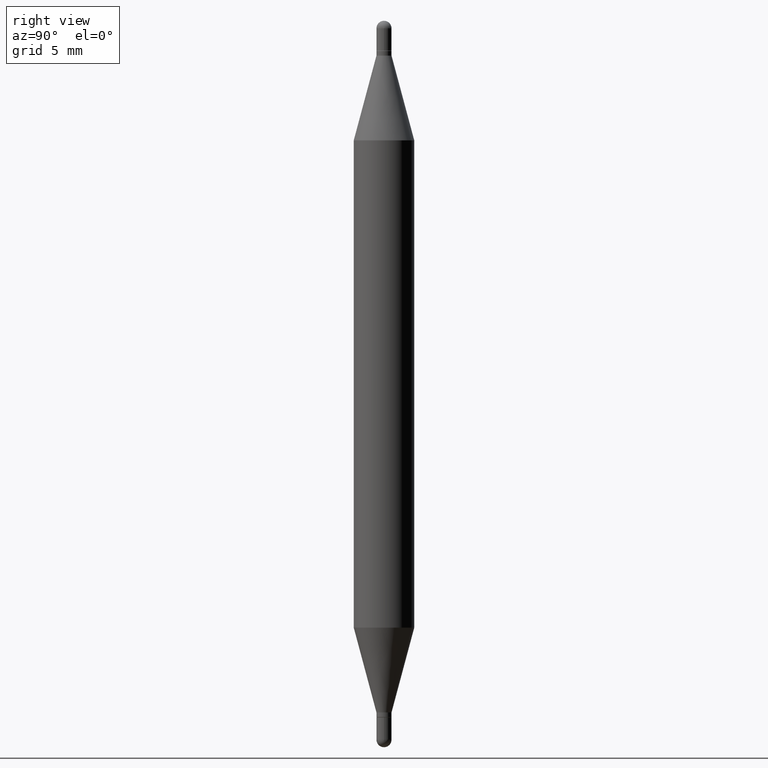
[diagram: clean part render]
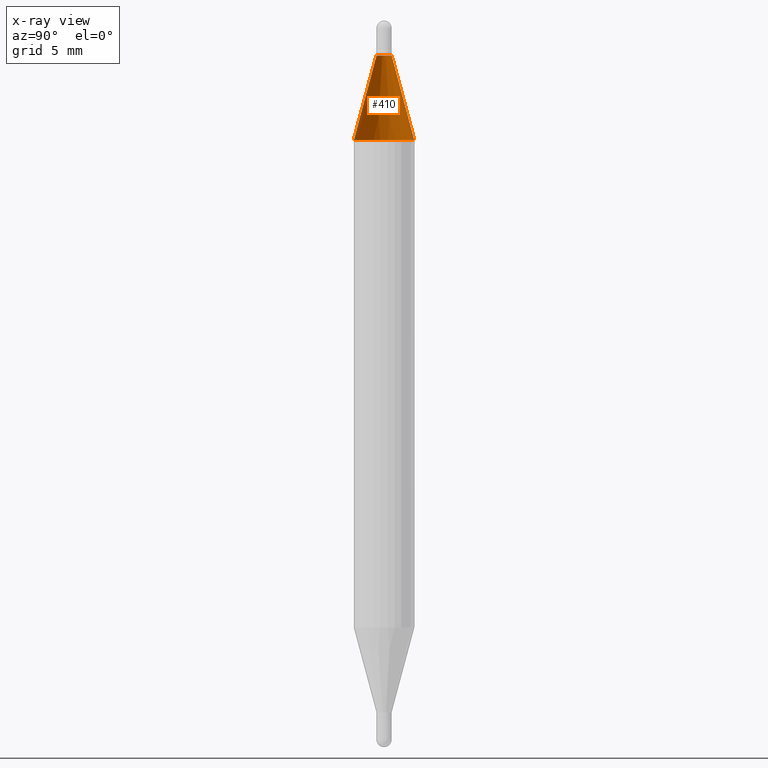
[diagram: x-ray — body ghosted, one internal face saturated and labeled with its STEP entity id]
A machine part, right view, then the same camera in x-ray: the body is ghosted and one INTERNAL B-rep face — a face not visible from any outside direction — is saturated and labeled: STEP entity #410.
In plain terms, the highlighted conical surface has half-angle 15 deg.
Its self-contained STEP definition (entity closure, byte-faithful):
#11 = EDGE_CURVE ( 'NONE', #338, #991, #425, .T. ) ;
#30 = DIRECTION ( 'NONE',  ( -6.982962677686265133E-15, -1.000000000000000000, 3.283471146231123028E-15 ) ) ;
#87 = CARTESIAN_POINT ( 'NONE',  ( -1.089342177718695287E-16, -0.01560000000000007561, -0.07199999999999989742 ) ) ;
#119 = DIRECTION ( 'NONE',  ( 2.448365453507603651E-29, 3.483762630810528106E-15, 1.000000000000000000 ) ) ;
#162 = CARTESIAN_POINT ( 'NONE',  ( 3.496265867608858858E-29, -2.535088175682956501E-16, -0.07199999999999993905 ) ) ;
#172 = EDGE_CURVE ( 'NONE', #691, #991, #570, .T. ) ;
#178 = CONICAL_SURFACE ( 'NONE', #605, 0.01559999999999982234, 0.2617993877991499629 ) ;
#199 = FACE_OUTER_BOUND ( 'NONE', #845, .T. ) ;
#201 = CARTESIAN_POINT ( 'NONE',  ( 3.067720669440277841E-29, -8.632828792199796341E-16, -0.2470331828749805503 ) ) ;
#235 = VECTOR ( 'NONE', #1026, 39.37007874015748854 ) ;
#239 = LINE ( 'NONE', #399, #250 ) ;
#250 = VECTOR ( 'NONE', #305, 39.37007874015748143 ) ;
#269 = CARTESIAN_POINT ( 'NONE',  ( 1.070237687652701516E-16, 0.01559999999999956734, -0.07199999999999999456 ) ) ;
#298 = DIRECTION ( 'NONE',  ( -2.448365453507603651E-29, -3.483762630810528106E-15, -1.000000000000000000 ) ) ;
#305 = DIRECTION ( 'NONE',  ( 1.775627540710963328E-15, 0.2588190451025179084, -0.9659258262890690894 ) ) ;
#338 = VERTEX_POINT ( 'NONE', #833 ) ;
#355 = ORIENTED_EDGE ( 'NONE', *, *, #172, .T. ) ;
#386 = DIRECTION ( 'NONE',  ( -6.982962677686265133E-15, -1.000000000000000000, 3.283471146231123028E-15 ) ) ;
#399 = CARTESIAN_POINT ( 'NONE',  ( 1.070237687652696216E-16, 0.01559999999999956734, -0.07199999999999999456 ) ) ;
#410 = ADVANCED_FACE ( 'NONE', ( #199 ), #178, .T. ) ;
#422 = ORIENTED_EDGE ( 'NONE', *, *, #830, .T. ) ;
#425 = LINE ( 'NONE', #87, #235 ) ;
#450 = CARTESIAN_POINT ( 'NONE',  ( 3.496265867608858858E-29, -2.535088175682956501E-16, -0.07199999999999993905 ) ) ;
#532 = CARTESIAN_POINT ( 'NONE',  ( 4.287811248607512910E-16, 0.06249999999999911876, -0.2470331828749807723 ) ) ;
#559 = ORIENTED_EDGE ( 'NONE', *, *, #11, .F. ) ;
#570 = CIRCLE ( 'NONE', #1090, 0.06249999999999999306 ) ;
#605 = AXIS2_PLACEMENT_3D ( 'NONE', #450, #298, #30 ) ;
#677 = CIRCLE ( 'NONE', #1089, 0.01559999999999982234 ) ;
#691 = VERTEX_POINT ( 'NONE', #532 ) ;
#703 = DIRECTION ( 'NONE',  ( 2.448365453507603651E-29, 3.483762630810528106E-15, 1.000000000000000000 ) ) ;
#783 = EDGE_CURVE ( 'NONE', #1062, #338, #677, .T. ) ;
#799 = DIRECTION ( 'NONE',  ( -6.982962677686265922E-15, -1.000000000000000000, 3.278217592397116257E-15 ) ) ;
#830 = EDGE_CURVE ( 'NONE', #1062, #691, #239, .T. ) ;
#833 = CARTESIAN_POINT ( 'NONE',  ( -1.089342177718695287E-16, -0.01560000000000007561, -0.07199999999999989742 ) ) ;
#845 = EDGE_LOOP ( 'NONE', ( #931, #422, #355, #559 ) ) ;
#858 = CARTESIAN_POINT ( 'NONE',  ( -4.364351673553608545E-16, -0.06250000000000086042, -0.2470331828749803005 ) ) ;
#931 = ORIENTED_EDGE ( 'NONE', *, *, #783, .F. ) ;
#991 = VERTEX_POINT ( 'NONE', #858 ) ;
#1026 = DIRECTION ( 'NONE',  ( -1.807323732225327773E-15, -0.2588190451025246253, -0.9659258262890670910 ) ) ;
#1062 = VERTEX_POINT ( 'NONE', #269 ) ;
#1089 = AXIS2_PLACEMENT_3D ( 'NONE', #162, #119, #386 ) ;
#1090 = AXIS2_PLACEMENT_3D ( 'NONE', #201, #703, #799 ) ;